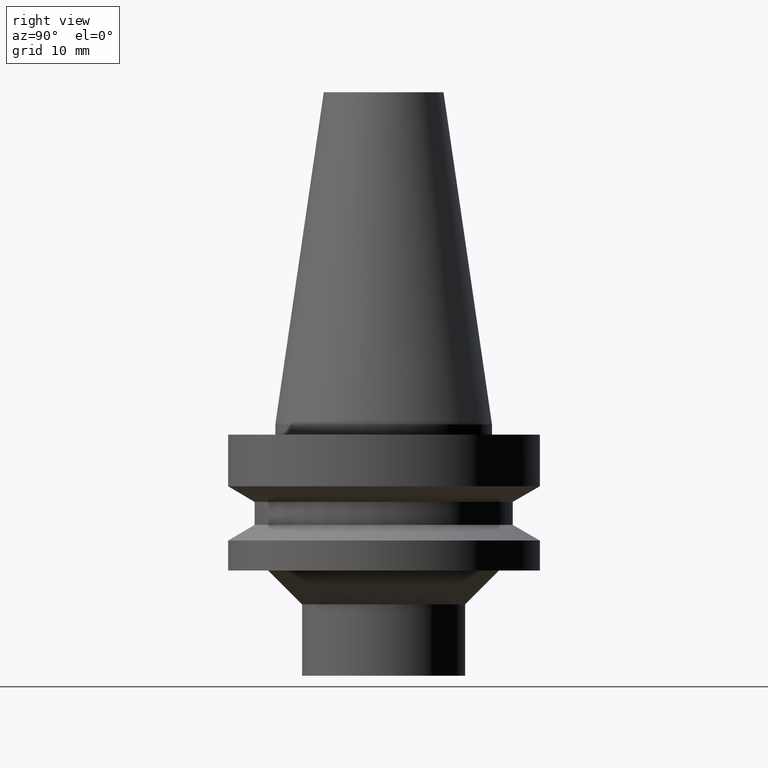
[diagram: clean part render]
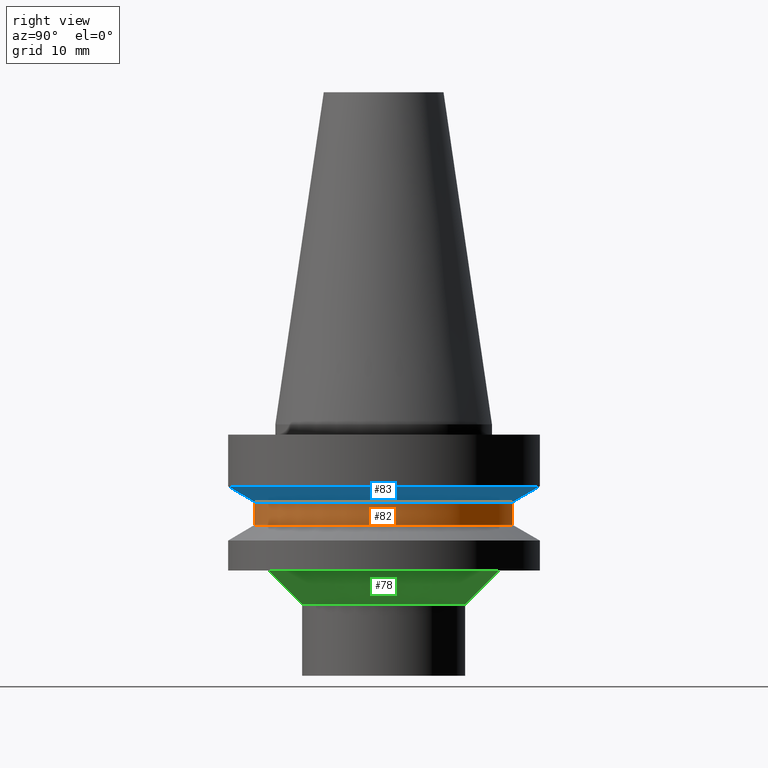
[diagram: same view with three faces highlighted in distinct colors, each labeled with its STEP entity id]
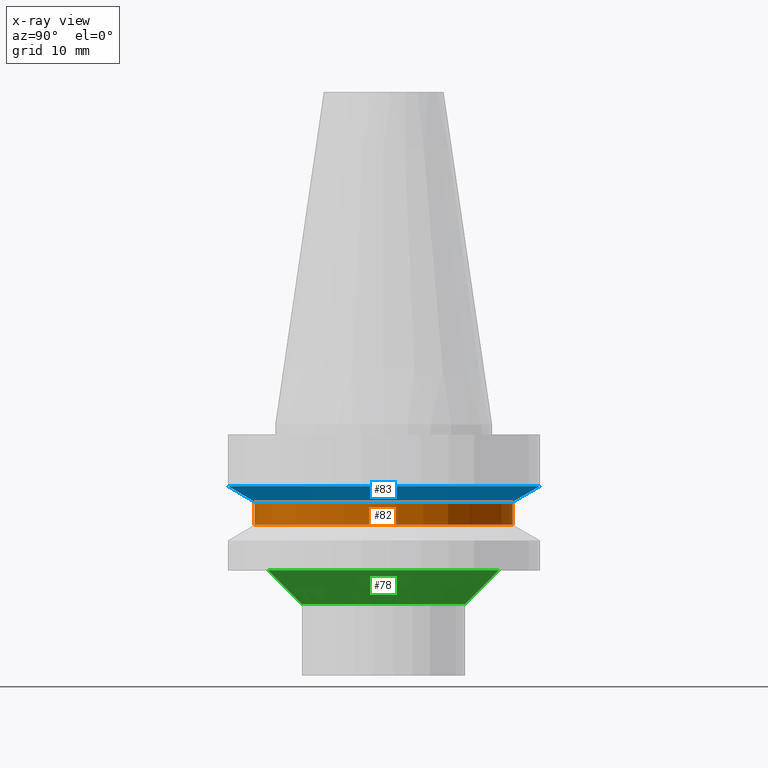
[diagram: x-ray of the same camera — body ghosted, the three highlighted faces saturated]
A machine part, right view with three faces highlighted in distinct colors.
The next image is the same camera in x-ray (body ghosted, the three faces saturated) — at least one of them is partly hidden behind the body in this view.
Their STEP definitions:

[orange] entity #82 — the highlighted cylindrical surface (bore or boss wall) has radius 19 mm, axis along (0, 0, -1).
#82=ADVANCED_FACE('',(#108,#109),#110,.T.);
#108=FACE_BOUND('',#145,.T.);
#109=FACE_BOUND('',#146,.T.);
#110=CYLINDRICAL_SURFACE('',#147,19.0);
#145=EDGE_LOOP('',(#196));
#146=EDGE_LOOP('',(#197));
#147=AXIS2_PLACEMENT_3D('',#198,#199,#200);
#196=ORIENTED_EDGE('',*,*,#233,.F.);
#197=ORIENTED_EDGE('',*,*,#232,.T.);
#198=CARTESIAN_POINT('',(8.3275982346833E-016,1.66551964693666E-015,-13.600000000786));
#199=DIRECTION('',(6.12323399573677E-017,1.22464679914735E-016,-1.0));
#200=DIRECTION('',(-1.23259516440783E-032,1.0,1.22464679914735E-016));
#232=EDGE_CURVE('',#250,#250,#251,.T.);
#233=EDGE_CURVE('',#252,#252,#253,.T.);
#250=VERTEX_POINT('',#274);
#251=CIRCLE('',#275,19.0);
#252=VERTEX_POINT('',#276);
#253=CIRCLE('',#277,19.0);
#274=CARTESIAN_POINT('',(9.36279120990808E-016,19.0,-15.2905984263002));
#275=AXIS2_PLACEMENT_3D('',#304,#305,#306);
#276=CARTESIAN_POINT('',(7.29240525945851E-016,19.0,-11.9094015752718));
#277=AXIS2_PLACEMENT_3D('',#307,#308,#309);
#304=CARTESIAN_POINT('',(9.36279120990808E-016,1.87255824198162E-015,-15.2905984263002));
#305=DIRECTION('',(-6.12323399573677E-017,-1.22464679914735E-016,1.0));
#306=DIRECTION('',(-1.23259516440783E-032,1.0,1.22464679914735E-016));
#307=CARTESIAN_POINT('',(7.29240525945851E-016,1.4584810518917E-015,-11.9094015752718));
#308=DIRECTION('',(-6.12323399573677E-017,-1.22464679914735E-016,1.0));
#309=DIRECTION('',(-1.23259516440783E-032,1.0,1.22464679914735E-016));

[blue] entity #83 — the highlighted conical surface has half-angle 60 deg.
#83=ADVANCED_FACE('',(#111,#112),#113,.T.);
#111=FACE_BOUND('',#148,.T.);
#112=FACE_BOUND('',#149,.T.);
#113=CONICAL_SURFACE('',#150,21.0,1.04719739053406);
#148=EDGE_LOOP('',(#201));
#149=EDGE_LOOP('',(#202));
#150=AXIS2_PLACEMENT_3D('',#203,#204,#205);
#201=ORIENTED_EDGE('',*,*,#234,.F.);
#202=ORIENTED_EDGE('',*,*,#233,.T.);
#203=CARTESIAN_POINT('',(6.58535483796872E-016,1.31707096759374E-015,-10.754700608459));
#204=DIRECTION('',(-6.12323399573676E-017,-1.22464679914735E-016,1.0));
#205=DIRECTION('',(-1.23259516440783E-032,1.0,1.22464679914735E-016));
#233=EDGE_CURVE('',#252,#252,#253,.T.);
#234=EDGE_CURVE('',#254,#254,#255,.T.);
#252=VERTEX_POINT('',#276);
#253=CIRCLE('',#277,19.0);
#254=VERTEX_POINT('',#278);
#255=CIRCLE('',#279,23.0);
#276=CARTESIAN_POINT('',(7.29240525945851E-016,19.0,-11.9094015752718));
#277=AXIS2_PLACEMENT_3D('',#307,#308,#309);
#278=CARTESIAN_POINT('',(5.87830441647893E-016,23.0,-9.59999964164628));
#279=AXIS2_PLACEMENT_3D('',#310,#311,#312);
#307=CARTESIAN_POINT('',(7.29240525945851E-016,1.4584810518917E-015,-11.9094015752718));
#308=DIRECTION('',(-6.12323399573677E-017,-1.22464679914735E-016,1.0));
#309=DIRECTION('',(-1.23259516440783E-032,1.0,1.22464679914735E-016));
#310=CARTESIAN_POINT('',(5.87830441647893E-016,1.17566088329579E-015,-9.59999964164628));
#311=DIRECTION('',(-6.12323399573677E-017,-1.22464679914735E-016,1.0));
#312=DIRECTION('',(-1.23259516440783E-032,1.0,1.22464679914735E-016));

[green] entity #78 — the highlighted conical surface has half-angle 45 deg.
#78=ADVANCED_FACE('',(#96,#97),#98,.T.);
#96=FACE_BOUND('',#133,.T.);
#97=FACE_BOUND('',#134,.T.);
#98=CONICAL_SURFACE('',#135,14.5000000000002,0.785398163397446);
#133=EDGE_LOOP('',(#176));
#134=EDGE_LOOP('',(#177));
#135=AXIS2_PLACEMENT_3D('',#178,#179,#180);
#176=ORIENTED_EDGE('',*,*,#229,.F.);
#177=ORIENTED_EDGE('',*,*,#228,.T.);
#178=CARTESIAN_POINT('',(1.5001923289555E-015,3.00038465791099E-015,-24.4999999999998));
#179=DIRECTION('',(-6.12323399573677E-017,-1.22464679914735E-016,1.0));
#180=DIRECTION('',(-1.23259516440783E-032,1.0,1.22464679914735E-016));
#228=EDGE_CURVE('',#242,#242,#243,.T.);
#229=EDGE_CURVE('',#244,#244,#245,.T.);
#242=VERTEX_POINT('',#266);
#243=CIRCLE('',#267,12.0);
#244=VERTEX_POINT('',#268);
#245=CIRCLE('',#269,17.0000000000004);
#266=CARTESIAN_POINT('',(1.65327317884893E-015,12.0,-27.0));
#267=AXIS2_PLACEMENT_3D('',#292,#293,#294);
#268=CARTESIAN_POINT('',(1.34711147906206E-015,17.0000000000004,-21.9999999999996));
#269=AXIS2_PLACEMENT_3D('',#295,#296,#297);
#292=CARTESIAN_POINT('',(1.65327317884893E-015,3.30654635769785E-015,-27.0));
#293=DIRECTION('',(-6.12323399573676E-017,-1.22464679914735E-016,1.0));
#294=DIRECTION('',(-1.23259516440783E-032,1.0,1.22464679914735E-016));
#295=CARTESIAN_POINT('',(1.34711147906206E-015,2.69422295812413E-015,-21.9999999999996));
#296=DIRECTION('',(-6.12323399573677E-017,-1.22464679914735E-016,1.0));
#297=DIRECTION('',(-1.23259516440783E-032,1.0,1.22464679914735E-016));